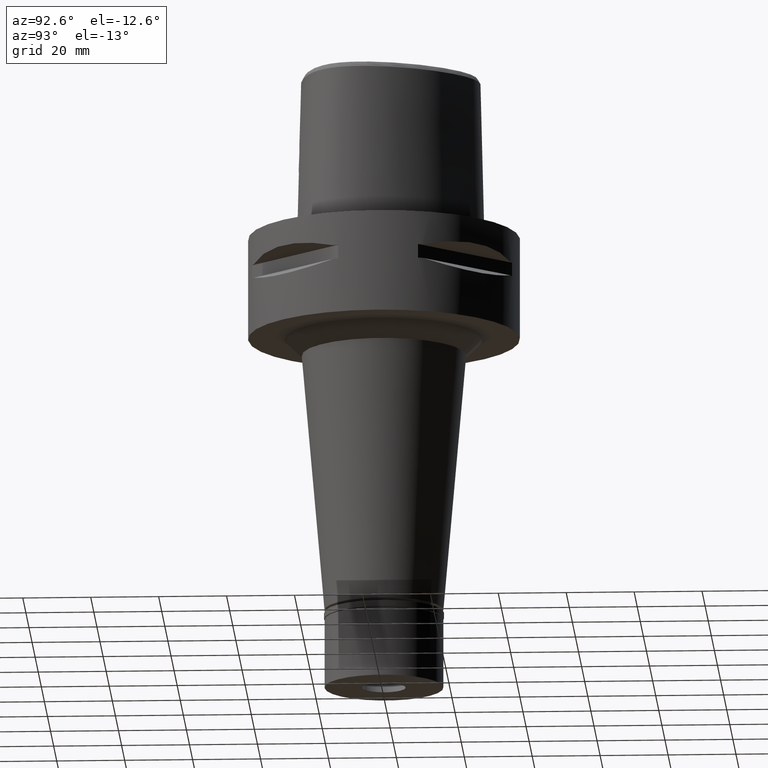
[diagram: clean part render]
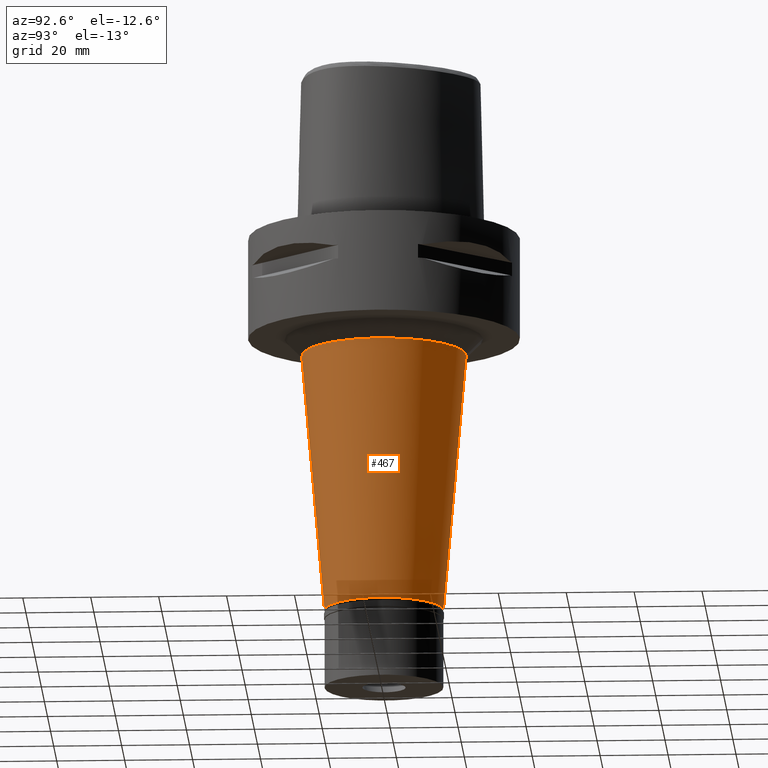
[diagram: same view with one face highlighted and labeled with its STEP entity id]
A machine part, auxiliary view. The second image highlights one B-rep face of the part: STEP entity #467.
In plain terms, the highlighted conical surface has half-angle 5 deg.
Its self-contained STEP definition (entity closure, byte-faithful):
#89 = DIRECTION ( 'NONE',  ( 0.0000000000000000000, 1.000000000000000000, 0.0000000000000000000 ) ) ;
#182 = ORIENTED_EDGE ( 'NONE', *, *, #4765, .F. ) ;
#226 = DIRECTION ( 'NONE',  ( 0.0000000000000000000, -1.000000000000000000, 0.0000000000000000000 ) ) ;
#267 = DIRECTION ( 'NONE',  ( 0.0000000000000000000, 0.08715574274767391716, -0.9961946980917442129 ) ) ;
#275 = AXIS2_PLACEMENT_3D ( 'NONE', #3247, #925, #89 ) ;
#313 = CARTESIAN_POINT ( 'NONE',  ( 0.0000000000000000000, 24.21038049243999879, -35.00000000000000000 ) ) ;
#467 = ADVANCED_FACE ( 'NONE', ( #485 ), #3014, .T. ) ;
#485 = FACE_OUTER_BOUND ( 'NONE', #832, .T. ) ;
#832 = EDGE_LOOP ( 'NONE', ( #182, #2657, #2554, #2811 ) ) ;
#835 = AXIS2_PLACEMENT_3D ( 'NONE', #3956, #1923, #5152 ) ;
#850 = EDGE_CURVE ( 'NONE', #3951, #3576, #2254, .T. ) ;
#925 = DIRECTION ( 'NONE',  ( 0.0000000000000000000, 0.0000000000000000000, 1.000000000000000000 ) ) ;
#1079 = CIRCLE ( 'NONE', #835, 17.50000000000000000 ) ;
#1152 = VERTEX_POINT ( 'NONE', #2716 ) ;
#1489 = DIRECTION ( 'NONE',  ( 0.0000000000000000000, -0.08715574274767391716, -0.9961946980917442129 ) ) ;
#1923 = DIRECTION ( 'NONE',  ( 0.0000000000000000000, 0.0000000000000000000, 1.000000000000000000 ) ) ;
#2006 = AXIS2_PLACEMENT_3D ( 'NONE', #2679, #3066, #226 ) ;
#2254 = LINE ( 'NONE', #4243, #2862 ) ;
#2554 = ORIENTED_EDGE ( 'NONE', *, *, #3309, .T. ) ;
#2657 = ORIENTED_EDGE ( 'NONE', *, *, #850, .T. ) ;
#2679 = CARTESIAN_POINT ( 'NONE',  ( 0.0000000000000000000, 0.0000000000000000000, -35.00000000000000000 ) ) ;
#2716 = CARTESIAN_POINT ( 'NONE',  ( 0.0000000000000000000, 17.50000000000000000, -111.6999999999999886 ) ) ;
#2811 = ORIENTED_EDGE ( 'NONE', *, *, #3624, .F. ) ;
#2862 = VECTOR ( 'NONE', #267, 1000.000000000000000 ) ;
#2911 = CIRCLE ( 'NONE', #2006, 24.21038049243999879 ) ;
#3014 = CONICAL_SURFACE ( 'NONE', #275, 20.85519024622000117, 0.08726646259969973729 ) ;
#3066 = DIRECTION ( 'NONE',  ( 0.0000000000000000000, 0.0000000000000000000, 1.000000000000000000 ) ) ;
#3247 = CARTESIAN_POINT ( 'NONE',  ( 0.0000000000000000000, 0.0000000000000000000, -73.34999999999999432 ) ) ;
#3309 = EDGE_CURVE ( 'NONE', #3576, #1152, #1079, .T. ) ;
#3437 = LINE ( 'NONE', #4660, #4229 ) ;
#3490 = CARTESIAN_POINT ( 'NONE',  ( 0.0000000000000000000, -24.21038049243999879, -35.00000000000000000 ) ) ;
#3576 = VERTEX_POINT ( 'NONE', #5049 ) ;
#3624 = EDGE_CURVE ( 'NONE', #3998, #1152, #3437, .T. ) ;
#3951 = VERTEX_POINT ( 'NONE', #3490 ) ;
#3956 = CARTESIAN_POINT ( 'NONE',  ( 0.0000000000000000000, 0.0000000000000000000, -111.6999999999999886 ) ) ;
#3998 = VERTEX_POINT ( 'NONE', #313 ) ;
#4229 = VECTOR ( 'NONE', #1489, 1000.000000000000000 ) ;
#4243 = CARTESIAN_POINT ( 'NONE',  ( 0.0000000000000000000, -24.21038049243999879, -35.00000000000000000 ) ) ;
#4660 = CARTESIAN_POINT ( 'NONE',  ( 0.0000000000000000000, 24.21038049243999879, -35.00000000000000000 ) ) ;
#4765 = EDGE_CURVE ( 'NONE', #3951, #3998, #2911, .T. ) ;
#5049 = CARTESIAN_POINT ( 'NONE',  ( 0.0000000000000000000, -17.50000000000000000, -111.6999999999999886 ) ) ;
#5152 = DIRECTION ( 'NONE',  ( 0.0000000000000000000, -1.000000000000000000, 0.0000000000000000000 ) ) ;